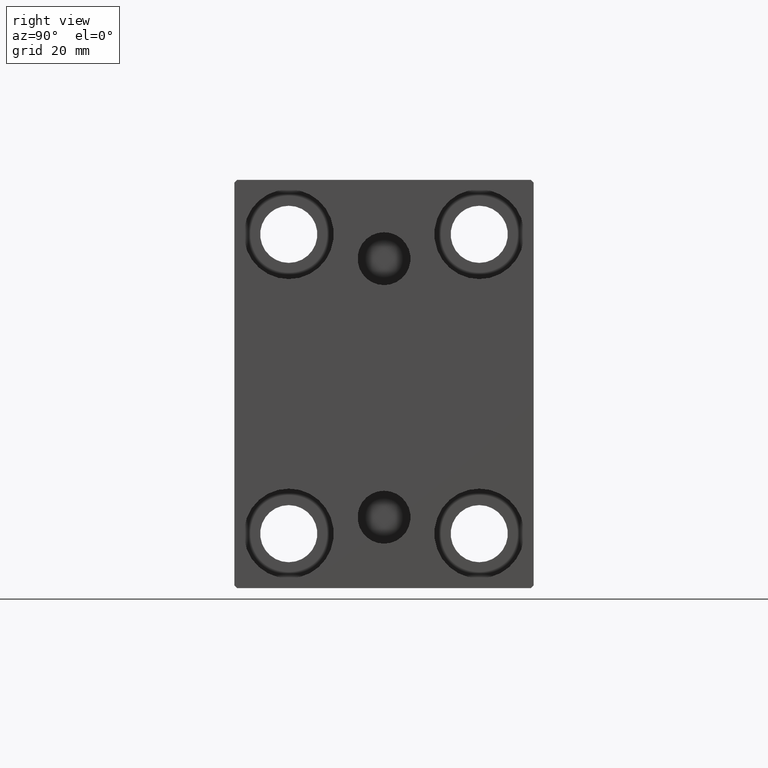
[diagram: clean part render]
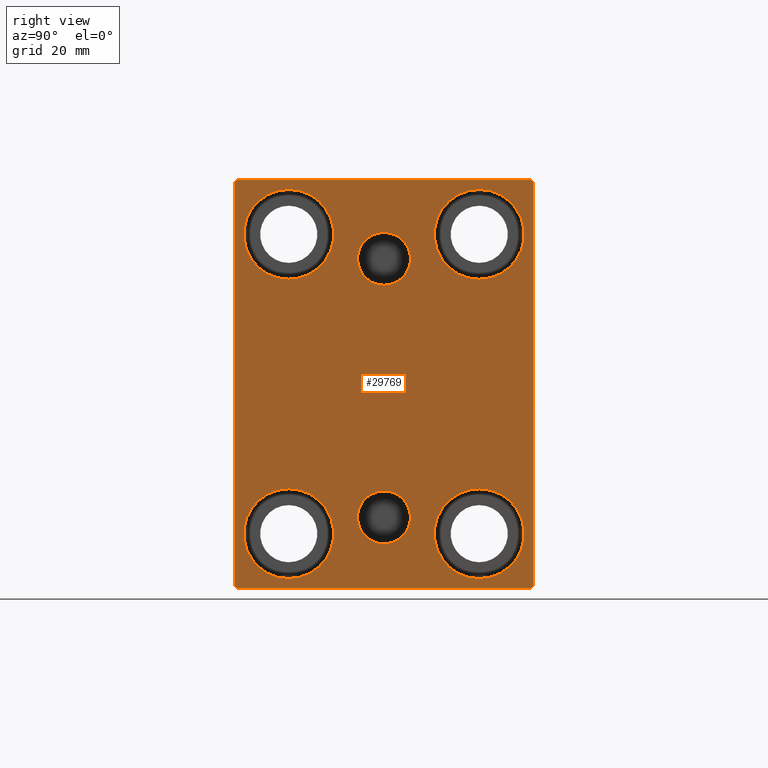
[diagram: same view with one face highlighted and labeled with its STEP entity id]
A machine part, right view. The second image highlights one B-rep face of the part: STEP entity #29769.
In plain terms, the highlighted planar face has unit normal (1, 0, 0).
Its self-contained STEP definition (entity closure, byte-faithful):
#96 = VECTOR ( 'NONE', #36647, 1000.000000000000114 ) ;
#187 = FACE_OUTER_BOUND ( 'NONE', #1560, .T. ) ;
#741 = CIRCLE ( 'NONE', #40841, 8.249999999999992895 ) ;
#793 = DIRECTION ( 'NONE',  ( -0.000000000000000000, -0.7071067811865524577, 0.7071067811865426878 ) ) ;
#825 = DIRECTION ( 'NONE',  ( 0.000000000000000000, 1.000000000000000000, 0.000000000000000000 ) ) ;
#942 = DIRECTION ( 'NONE',  ( -1.000000000000000000, -0.000000000000000000, -0.000000000000000000 ) ) ;
#1560 = EDGE_LOOP ( 'NONE', ( #19508, #22713, #41328, #22659, #14564, #15300, #11194, #19392 ) ) ;
#1603 = CARTESIAN_POINT ( 'NONE',  ( 85.00000000000000000, -17.49999999999999645, 35.74999999999999289 ) ) ;
#1907 = CARTESIAN_POINT ( 'NONE',  ( 85.00000000000000000, 26.99999999999999645, 37.50000000000000711 ) ) ;
#2269 = CARTESIAN_POINT ( 'NONE',  ( 85.00000000000000000, 27.50000000000000355, -37.50000000000000000 ) ) ;
#2428 = ORIENTED_EDGE ( 'NONE', *, *, #26033, .T. ) ;
#2634 = AXIS2_PLACEMENT_3D ( 'NONE', #21159, #34608, #4444 ) ;
#2831 = CARTESIAN_POINT ( 'NONE',  ( 85.00000000000000000, 3.000384657911015074E-15, -24.49999999999999289 ) ) ;
#3238 = VERTEX_POINT ( 'NONE', #26418 ) ;
#3351 = ORIENTED_EDGE ( 'NONE', *, *, #34761, .T. ) ;
#3636 = CIRCLE ( 'NONE', #4366, 4.859999999999999432 ) ;
#3792 = VERTEX_POINT ( 'NONE', #24097 ) ;
#4053 = CARTESIAN_POINT ( 'NONE',  ( 85.00000000000000000, -17.49999999999999645, 19.25000000000000000 ) ) ;
#4270 = CIRCLE ( 'NONE', #23928, 4.859999999999999432 ) ;
#4279 = VECTOR ( 'NONE', #793, 1000.000000000000000 ) ;
#4366 = AXIS2_PLACEMENT_3D ( 'NONE', #7066, #33941, #9706 ) ;
#4444 = DIRECTION ( 'NONE',  ( 0.000000000000000000, 0.000000000000000000, 1.000000000000000000 ) ) ;
#4492 = AXIS2_PLACEMENT_3D ( 'NONE', #21413, #4699, #34201 ) ;
#4699 = DIRECTION ( 'NONE',  ( -1.000000000000000000, -0.000000000000000000, -0.000000000000000000 ) ) ;
#4773 = CARTESIAN_POINT ( 'NONE',  ( 85.00000000000000000, -32.25000000000000000, -32.25000000000000000 ) ) ;
#4862 = CARTESIAN_POINT ( 'NONE',  ( 85.00000000000000000, -27.50000000000000355, 37.00000000000000000 ) ) ;
#5099 = VERTEX_POINT ( 'NONE', #12141 ) ;
#5360 = VERTEX_POINT ( 'NONE', #4862 ) ;
#5513 = EDGE_CURVE ( 'NONE', #3238, #34431, #33004, .T. ) ;
#5583 = EDGE_LOOP ( 'NONE', ( #28434, #3351 ) ) ;
#5688 = ORIENTED_EDGE ( 'NONE', *, *, #12292, .T. ) ;
#5710 = CARTESIAN_POINT ( 'NONE',  ( 85.00000000000000000, 3.000384657911015074E-15, -24.49999999999999289 ) ) ;
#5786 = CARTESIAN_POINT ( 'NONE',  ( 85.00000000000000000, 17.50000000000000355, 35.74999999999999289 ) ) ;
#5809 = DIRECTION ( 'NONE',  ( -1.000000000000000000, -0.000000000000000000, -0.000000000000000000 ) ) ;
#6036 = CARTESIAN_POINT ( 'NONE',  ( 85.00000000000000000, -32.25000000000000000, 32.25000000000000000 ) ) ;
#6234 = CARTESIAN_POINT ( 'NONE',  ( 85.00000000000000000, 17.49999999999999645, -27.50000000000000355 ) ) ;
#6557 = LINE ( 'NONE', #33434, #11925 ) ;
#6578 = PLANE ( 'NONE',  #27491 ) ;
#6610 = DIRECTION ( 'NONE',  ( -1.000000000000000000, -0.000000000000000000, -0.000000000000000000 ) ) ;
#6800 = DIRECTION ( 'NONE',  ( 0.000000000000000000, 0.000000000000000000, -1.000000000000000000 ) ) ;
#7023 = VERTEX_POINT ( 'NONE', #23950 ) ;
#7066 = CARTESIAN_POINT ( 'NONE',  ( 85.00000000000000000, -3.571693674697836683E-15, 23.00000000000000711 ) ) ;
#7648 = CARTESIAN_POINT ( 'NONE',  ( 85.00000000000000000, -27.50000000000000355, 37.50000000000000000 ) ) ;
#8090 = CARTESIAN_POINT ( 'NONE',  ( 85.00000000000000000, 27.50000000000000355, -37.00000000000000000 ) ) ;
#8230 = VERTEX_POINT ( 'NONE', #1907 ) ;
#8339 = CARTESIAN_POINT ( 'NONE',  ( 85.00000000000000000, 27.49999999999999645, 37.00000000000001421 ) ) ;
#8491 = CARTESIAN_POINT ( 'NONE',  ( 85.00000000000000000, 27.49999999999999645, 37.50000000000000711 ) ) ;
#9612 = EDGE_CURVE ( 'NONE', #7023, #21087, #24968, .T. ) ;
#9663 = FACE_BOUND ( 'NONE', #9725, .T. ) ;
#9706 = DIRECTION ( 'NONE',  ( 0.000000000000000000, 0.000000000000000000, -1.000000000000000000 ) ) ;
#9725 = EDGE_LOOP ( 'NONE', ( #37204, #24555 ) ) ;
#10662 = DIRECTION ( 'NONE',  ( 0.000000000000000000, 0.000000000000000000, 1.000000000000000000 ) ) ;
#10925 = DIRECTION ( 'NONE',  ( 0.000000000000000000, -1.000000000000000000, -1.261617073437677999E-16 ) ) ;
#11194 = ORIENTED_EDGE ( 'NONE', *, *, #42262, .T. ) ;
#11265 = CARTESIAN_POINT ( 'NONE',  ( 85.00000000000000000, -27.00000000000000355, 37.50000000000000000 ) ) ;
#11305 = CARTESIAN_POINT ( 'NONE',  ( 85.00000000000000000, 17.49999999999999645, -27.50000000000000355 ) ) ;
#11925 = VECTOR ( 'NONE', #825, 1000.000000000000000 ) ;
#12118 = DIRECTION ( 'NONE',  ( -1.000000000000000000, -0.000000000000000000, -0.000000000000000000 ) ) ;
#12141 = CARTESIAN_POINT ( 'NONE',  ( 85.00000000000000000, 3.000384657911015074E-15, -29.35999999999999233 ) ) ;
#12292 = EDGE_CURVE ( 'NONE', #23410, #16384, #34883, .T. ) ;
#12331 = DIRECTION ( 'NONE',  ( 0.000000000000000000, 0.000000000000000000, 1.000000000000000000 ) ) ;
#12951 = DIRECTION ( 'NONE',  ( 1.000000000000000000, 0.000000000000000000, -0.000000000000000000 ) ) ;
#13402 = FACE_BOUND ( 'NONE', #5583, .T. ) ;
#14564 = ORIENTED_EDGE ( 'NONE', *, *, #21859, .T. ) ;
#15300 = ORIENTED_EDGE ( 'NONE', *, *, #5513, .T. ) ;
#15343 = VERTEX_POINT ( 'NONE', #4053 ) ;
#15651 = CARTESIAN_POINT ( 'NONE',  ( 85.00000000000000000, 17.50000000000000355, 27.49999999999999645 ) ) ;
#15825 = VERTEX_POINT ( 'NONE', #11265 ) ;
#15836 = EDGE_CURVE ( 'NONE', #15343, #38946, #27948, .T. ) ;
#16042 = EDGE_CURVE ( 'NONE', #24887, #31126, #38247, .T. ) ;
#16384 = VERTEX_POINT ( 'NONE', #5786 ) ;
#16807 = DIRECTION ( 'NONE',  ( 0.000000000000000000, 0.000000000000000000, -1.000000000000000000 ) ) ;
#16831 = CARTESIAN_POINT ( 'NONE',  ( 85.00000000000000000, 17.50000000000000355, 27.49999999999999645 ) ) ;
#17073 = AXIS2_PLACEMENT_3D ( 'NONE', #6234, #5809, #43459 ) ;
#17305 = CARTESIAN_POINT ( 'NONE',  ( 85.00000000000000000, -27.50000000000000355, -37.00000000000000000 ) ) ;
#17753 = DIRECTION ( 'NONE',  ( -0.000000000000000000, 0.7071067811865474617, -0.7071067811865474617 ) ) ;
#18560 = VERTEX_POINT ( 'NONE', #30890 ) ;
#19363 = VERTEX_POINT ( 'NONE', #28712 ) ;
#19392 = ORIENTED_EDGE ( 'NONE', *, *, #24948, .T. ) ;
#19422 = CARTESIAN_POINT ( 'NONE',  ( 85.00000000000000000, -17.50000000000000355, -27.50000000000000355 ) ) ;
#19508 = ORIENTED_EDGE ( 'NONE', *, *, #22235, .T. ) ;
#20200 = LINE ( 'NONE', #7648, #31009 ) ;
#21087 = VERTEX_POINT ( 'NONE', #38955 ) ;
#21159 = CARTESIAN_POINT ( 'NONE',  ( 85.00000000000000000, -17.49999999999999645, 27.49999999999999645 ) ) ;
#21283 = ORIENTED_EDGE ( 'NONE', *, *, #32105, .F. ) ;
#21413 = CARTESIAN_POINT ( 'NONE',  ( 85.00000000000000000, -17.50000000000000355, -27.50000000000000355 ) ) ;
#21423 = CARTESIAN_POINT ( 'NONE',  ( 85.00000000000000000, 3.595563002296627957E-15, -19.63999999999999346 ) ) ;
#21720 = EDGE_CURVE ( 'NONE', #5099, #28478, #32333, .T. ) ;
#21765 = CIRCLE ( 'NONE', #28809, 8.250000000000000000 ) ;
#21859 = EDGE_CURVE ( 'NONE', #31126, #3238, #6557, .T. ) ;
#21949 = ORIENTED_EDGE ( 'NONE', *, *, #21720, .F. ) ;
#22061 = EDGE_LOOP ( 'NONE', ( #21283, #35620 ) ) ;
#22063 = AXIS2_PLACEMENT_3D ( 'NONE', #11305, #942, #27813 ) ;
#22235 = EDGE_CURVE ( 'NONE', #8230, #15825, #41983, .T. ) ;
#22279 = EDGE_LOOP ( 'NONE', ( #2428, #39493 ) ) ;
#22659 = ORIENTED_EDGE ( 'NONE', *, *, #16042, .T. ) ;
#22713 = ORIENTED_EDGE ( 'NONE', *, *, #31685, .T. ) ;
#23083 = FACE_BOUND ( 'NONE', #23757, .T. ) ;
#23410 = VERTEX_POINT ( 'NONE', #39548 ) ;
#23473 = VERTEX_POINT ( 'NONE', #8339 ) ;
#23757 = EDGE_LOOP ( 'NONE', ( #21949, #28120 ) ) ;
#23834 = CARTESIAN_POINT ( 'NONE',  ( 85.00000000000000000, 17.49999999999999645, -35.75000000000000711 ) ) ;
#23928 = AXIS2_PLACEMENT_3D ( 'NONE', #5710, #12951, #26385 ) ;
#23947 = EDGE_CURVE ( 'NONE', #38946, #15343, #741, .T. ) ;
#23950 = CARTESIAN_POINT ( 'NONE',  ( 85.00000000000000000, -2.976515330312223406E-15, 27.86000000000000654 ) ) ;
#24097 = CARTESIAN_POINT ( 'NONE',  ( 85.00000000000000000, -17.50000000000000355, -19.25000000000000355 ) ) ;
#24555 = ORIENTED_EDGE ( 'NONE', *, *, #23947, .T. ) ;
#24887 = VERTEX_POINT ( 'NONE', #17305 ) ;
#24948 = EDGE_CURVE ( 'NONE', #23473, #8230, #28111, .T. ) ;
#24968 = CIRCLE ( 'NONE', #25638, 4.859999999999999432 ) ;
#25630 = LINE ( 'NONE', #6036, #96 ) ;
#25638 = AXIS2_PLACEMENT_3D ( 'NONE', #33125, #39951, #16807 ) ;
#25697 = AXIS2_PLACEMENT_3D ( 'NONE', #15651, #6610, #25781 ) ;
#25781 = DIRECTION ( 'NONE',  ( 0.000000000000000000, 0.000000000000000000, 1.000000000000000000 ) ) ;
#26033 = EDGE_CURVE ( 'NONE', #18560, #3792, #21765, .T. ) ;
#26191 = CIRCLE ( 'NONE', #17073, 8.250000000000000000 ) ;
#26385 = DIRECTION ( 'NONE',  ( 0.000000000000000000, 0.000000000000000000, 1.000000000000000000 ) ) ;
#26418 = CARTESIAN_POINT ( 'NONE',  ( 85.00000000000000000, 27.00000000000000355, -37.50000000000000000 ) ) ;
#26519 = DIRECTION ( 'NONE',  ( -1.000000000000000000, -0.000000000000000000, -0.000000000000000000 ) ) ;
#26833 = CARTESIAN_POINT ( 'NONE',  ( 85.00000000000000000, 0.000000000000000000, 0.000000000000000000 ) ) ;
#26866 = EDGE_CURVE ( 'NONE', #16384, #23410, #37970, .T. ) ;
#27216 = CARTESIAN_POINT ( 'NONE',  ( 85.00000000000000000, 32.24999999999981526, 32.25000000000025580 ) ) ;
#27491 = AXIS2_PLACEMENT_3D ( 'NONE', #26833, #40286, #6800 ) ;
#27813 = DIRECTION ( 'NONE',  ( 0.000000000000000000, 0.000000000000000000, 1.000000000000000000 ) ) ;
#27948 = CIRCLE ( 'NONE', #2634, 8.249999999999992895 ) ;
#28111 = LINE ( 'NONE', #27216, #4279 ) ;
#28120 = ORIENTED_EDGE ( 'NONE', *, *, #28250, .F. ) ;
#28200 = VECTOR ( 'NONE', #33440, 1000.000000000000114 ) ;
#28250 = EDGE_CURVE ( 'NONE', #28478, #5099, #4270, .T. ) ;
#28411 = CIRCLE ( 'NONE', #4492, 8.250000000000000000 ) ;
#28434 = ORIENTED_EDGE ( 'NONE', *, *, #39082, .T. ) ;
#28478 = VERTEX_POINT ( 'NONE', #21423 ) ;
#28498 = LINE ( 'NONE', #2269, #32701 ) ;
#28712 = CARTESIAN_POINT ( 'NONE',  ( 85.00000000000000000, 17.49999999999999645, -19.25000000000000355 ) ) ;
#28809 = AXIS2_PLACEMENT_3D ( 'NONE', #19422, #40346, #32867 ) ;
#29116 = CIRCLE ( 'NONE', #22063, 8.250000000000000000 ) ;
#29769 = ADVANCED_FACE ( 'NONE', ( #43373, #23083, #13402, #9663, #36336, #32804, #187 ), #6578, .T. ) ;
#30198 = ORIENTED_EDGE ( 'NONE', *, *, #26866, .T. ) ;
#30353 = EDGE_CURVE ( 'NONE', #5360, #24887, #20200, .T. ) ;
#30890 = CARTESIAN_POINT ( 'NONE',  ( 85.00000000000000000, -17.50000000000000355, -35.75000000000000711 ) ) ;
#31009 = VECTOR ( 'NONE', #37176, 1000.000000000000000 ) ;
#31126 = VERTEX_POINT ( 'NONE', #40320 ) ;
#31587 = DIRECTION ( 'NONE',  ( 0.000000000000000000, -9.251858538542970348E-17, 1.000000000000000000 ) ) ;
#31627 = AXIS2_PLACEMENT_3D ( 'NONE', #2831, #33216, #32781 ) ;
#31685 = EDGE_CURVE ( 'NONE', #15825, #5360, #25630, .T. ) ;
#32105 = EDGE_CURVE ( 'NONE', #21087, #7023, #3636, .T. ) ;
#32333 = CIRCLE ( 'NONE', #31627, 4.859999999999999432 ) ;
#32701 = VECTOR ( 'NONE', #31587, 1000.000000000000000 ) ;
#32781 = DIRECTION ( 'NONE',  ( 0.000000000000000000, 0.000000000000000000, 1.000000000000000000 ) ) ;
#32804 = FACE_BOUND ( 'NONE', #22279, .T. ) ;
#32820 = CARTESIAN_POINT ( 'NONE',  ( 85.00000000000000000, -17.49999999999999645, 27.49999999999999645 ) ) ;
#32867 = DIRECTION ( 'NONE',  ( 0.000000000000000000, 0.000000000000000000, 1.000000000000000000 ) ) ;
#33004 = LINE ( 'NONE', #39841, #28200 ) ;
#33125 = CARTESIAN_POINT ( 'NONE',  ( 85.00000000000000000, -3.571693674697836683E-15, 23.00000000000000711 ) ) ;
#33216 = DIRECTION ( 'NONE',  ( 1.000000000000000000, 0.000000000000000000, -0.000000000000000000 ) ) ;
#33434 = CARTESIAN_POINT ( 'NONE',  ( 85.00000000000000000, -27.50000000000000355, -37.50000000000000000 ) ) ;
#33440 = DIRECTION ( 'NONE',  ( -0.000000000000000000, 0.7071067811865474617, 0.7071067811865474617 ) ) ;
#33941 = DIRECTION ( 'NONE',  ( 1.000000000000000000, 0.000000000000000000, 0.000000000000000000 ) ) ;
#34201 = DIRECTION ( 'NONE',  ( 0.000000000000000000, 0.000000000000000000, 1.000000000000000000 ) ) ;
#34431 = VERTEX_POINT ( 'NONE', #8090 ) ;
#34451 = VECTOR ( 'NONE', #10925, 1000.000000000000000 ) ;
#34608 = DIRECTION ( 'NONE',  ( -1.000000000000000000, -0.000000000000000000, -0.000000000000000000 ) ) ;
#34761 = EDGE_CURVE ( 'NONE', #19363, #38036, #26191, .T. ) ;
#34883 = CIRCLE ( 'NONE', #25697, 8.249999999999992895 ) ;
#35620 = ORIENTED_EDGE ( 'NONE', *, *, #9612, .F. ) ;
#36336 = FACE_BOUND ( 'NONE', #43370, .T. ) ;
#36647 = DIRECTION ( 'NONE',  ( 0.000000000000000000, -0.7071067811865474617, -0.7071067811865474617 ) ) ;
#37176 = DIRECTION ( 'NONE',  ( 0.000000000000000000, 0.000000000000000000, -1.000000000000000000 ) ) ;
#37204 = ORIENTED_EDGE ( 'NONE', *, *, #15836, .T. ) ;
#37970 = CIRCLE ( 'NONE', #40797, 8.249999999999992895 ) ;
#38036 = VERTEX_POINT ( 'NONE', #23834 ) ;
#38136 = EDGE_CURVE ( 'NONE', #3792, #18560, #28411, .T. ) ;
#38247 = LINE ( 'NONE', #4773, #40618 ) ;
#38946 = VERTEX_POINT ( 'NONE', #1603 ) ;
#38955 = CARTESIAN_POINT ( 'NONE',  ( 85.00000000000000000, -3.571693674697836683E-15, 18.14000000000000767 ) ) ;
#39082 = EDGE_CURVE ( 'NONE', #38036, #19363, #29116, .T. ) ;
#39493 = ORIENTED_EDGE ( 'NONE', *, *, #38136, .T. ) ;
#39548 = CARTESIAN_POINT ( 'NONE',  ( 85.00000000000000000, 17.50000000000000355, 19.25000000000000000 ) ) ;
#39841 = CARTESIAN_POINT ( 'NONE',  ( 85.00000000000000000, 32.25000000000000000, -32.25000000000000000 ) ) ;
#39951 = DIRECTION ( 'NONE',  ( 1.000000000000000000, 0.000000000000000000, 0.000000000000000000 ) ) ;
#40286 = DIRECTION ( 'NONE',  ( 1.000000000000000000, 0.000000000000000000, 0.000000000000000000 ) ) ;
#40320 = CARTESIAN_POINT ( 'NONE',  ( 85.00000000000000000, -27.00000000000000355, -37.50000000000000000 ) ) ;
#40346 = DIRECTION ( 'NONE',  ( -1.000000000000000000, -0.000000000000000000, -0.000000000000000000 ) ) ;
#40618 = VECTOR ( 'NONE', #17753, 1000.000000000000114 ) ;
#40797 = AXIS2_PLACEMENT_3D ( 'NONE', #16831, #26519, #10662 ) ;
#40841 = AXIS2_PLACEMENT_3D ( 'NONE', #32820, #12118, #12331 ) ;
#41328 = ORIENTED_EDGE ( 'NONE', *, *, #30353, .T. ) ;
#41983 = LINE ( 'NONE', #8491, #34451 ) ;
#42262 = EDGE_CURVE ( 'NONE', #34431, #23473, #28498, .T. ) ;
#43370 = EDGE_LOOP ( 'NONE', ( #5688, #30198 ) ) ;
#43373 = FACE_BOUND ( 'NONE', #22061, .T. ) ;
#43459 = DIRECTION ( 'NONE',  ( 0.000000000000000000, 0.000000000000000000, 1.000000000000000000 ) ) ;